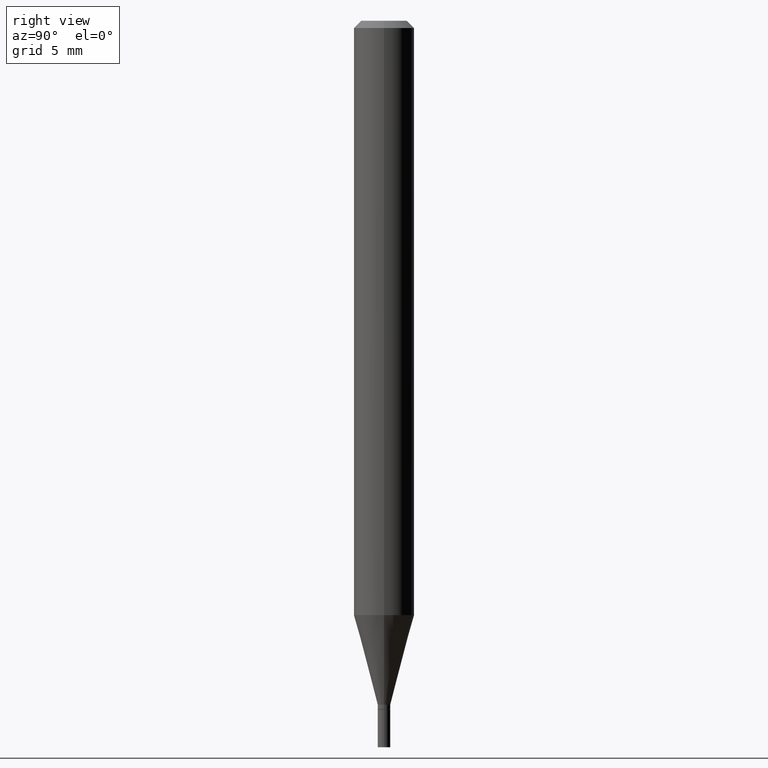
[diagram: clean part render]
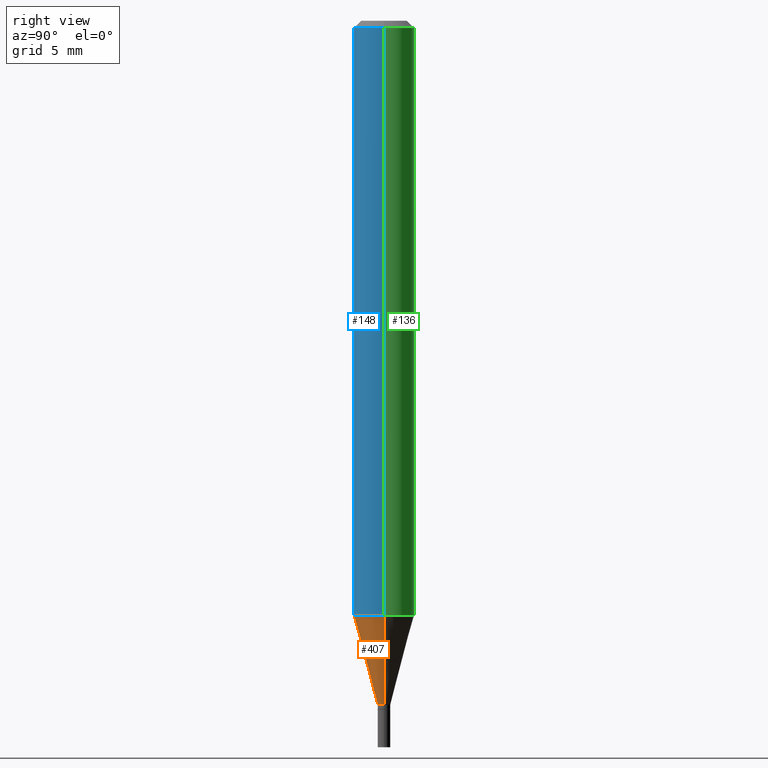
[diagram: same view with three faces highlighted in distinct colors, each labeled with its STEP entity id]
A machine part, right view with three faces highlighted in distinct colors.
Their STEP definitions:

[orange] entity #407 — the highlighted conical surface has half-angle 15 deg.
#1 = CARTESIAN_POINT ( 'NONE',  ( 0.06249999999999999306, -4.721402723164972337E-15, -1.227263485025340550 ) ) ;
#5 = AXIS2_PLACEMENT_3D ( 'NONE', #384, #348, #433 ) ;
#31 = DIRECTION ( 'NONE',  ( -2.445468806185136597E-29, 3.491481338843145583E-15, 1.000000000000000000 ) ) ;
#39 = CARTESIAN_POINT ( 'NONE',  ( 0.01299999999999992134, -5.020750165256443057E-15, -1.412000000000000144 ) ) ;
#53 = EDGE_CURVE ( 'NONE', #165, #60, #347, .T. ) ;
#60 = VERTEX_POINT ( 'NONE', #1 ) ;
#72 = VERTEX_POINT ( 'NONE', #39 ) ;
#82 = DIRECTION ( 'NONE',  ( 0.2588190451025207950, 1.565188264969625912E-15, 0.9659258262890682012 ) ) ;
#93 = VECTOR ( 'NONE', #82, 39.37007874015748854 ) ;
#94 = AXIS2_PLACEMENT_3D ( 'NONE', #178, #225, #460 ) ;
#96 = ORIENTED_EDGE ( 'NONE', *, *, #226, .F. ) ;
#99 = ORIENTED_EDGE ( 'NONE', *, *, #110, .T. ) ;
#110 = EDGE_CURVE ( 'NONE', #311, #72, #404, .T. ) ;
#111 = AXIS2_PLACEMENT_3D ( 'NONE', #408, #31, #171 ) ;
#114 = LINE ( 'NONE', #398, #93 ) ;
#137 = EDGE_LOOP ( 'NONE', ( #96, #99, #380, #305 ) ) ;
#165 = VERTEX_POINT ( 'NONE', #429 ) ;
#171 = DIRECTION ( 'NONE',  ( 1.000000000000000000, -6.982962677686299843E-15, 0.000000000000000000 ) ) ;
#178 = CARTESIAN_POINT ( 'NONE',  ( 3.001234569599529890E-29, -4.284967555809580668E-15, -1.227263485025340550 ) ) ;
#186 = CARTESIAN_POINT ( 'NONE',  ( -0.01299999999999992134, -4.837601094797709398E-15, -1.412000000000000144 ) ) ;
#195 = FACE_OUTER_BOUND ( 'NONE', #137, .T. ) ;
#222 = VECTOR ( 'NONE', #263, 39.37007874015748854 ) ;
#223 = CARTESIAN_POINT ( 'NONE',  ( -0.01299999999999992134, -4.339239720378613725E-15, -1.412000000000000144 ) ) ;
#225 = DIRECTION ( 'NONE',  ( -2.445468806185136597E-29, 3.491481338843145583E-15, 1.000000000000000000 ) ) ;
#226 = EDGE_CURVE ( 'NONE', #311, #165, #397, .T. ) ;
#263 = DIRECTION ( 'NONE',  ( -0.2588190451025207950, 5.211531920934546309E-15, 0.9659258262890682012 ) ) ;
#305 = ORIENTED_EDGE ( 'NONE', *, *, #53, .F. ) ;
#307 = EDGE_CURVE ( 'NONE', #72, #60, #114, .T. ) ;
#311 = VERTEX_POINT ( 'NONE', #223 ) ;
#347 = CIRCLE ( 'NONE', #94, 0.06250000000000000000 ) ;
#348 = DIRECTION ( 'NONE',  ( -2.445468806185136597E-29, 3.491481338843145583E-15, 1.000000000000000000 ) ) ;
#380 = ORIENTED_EDGE ( 'NONE', *, *, #307, .T. ) ;
#384 = CARTESIAN_POINT ( 'NONE',  ( 3.453001954333413314E-29, -4.929971650446521716E-15, -1.412000000000000144 ) ) ;
#392 = CONICAL_SURFACE ( 'NONE', #111, 0.01299999999999992134, 0.2617993877991495189 ) ;
#397 = LINE ( 'NONE', #186, #222 ) ;
#398 = CARTESIAN_POINT ( 'NONE',  ( 0.01299999999999992134, -5.020750165256443057E-15, -1.412000000000000144 ) ) ;
#404 = CIRCLE ( 'NONE', #5, 0.01299999999999992134 ) ;
#407 = ADVANCED_FACE ( 'NONE', ( #195 ), #392, .T. ) ;
#408 = CARTESIAN_POINT ( 'NONE',  ( 3.453001954333413314E-29, -4.929971650446521716E-15, -1.412000000000000144 ) ) ;
#429 = CARTESIAN_POINT ( 'NONE',  ( -0.06249999999999999306, -3.840878345959517263E-15, -1.227263485025340550 ) ) ;
#433 = DIRECTION ( 'NONE',  ( 1.000000000000000000, -6.982962677686299843E-15, 0.000000000000000000 ) ) ;
#460 = DIRECTION ( 'NONE',  ( 1.000000000000000000, -6.982962677686270655E-15, 0.000000000000000000 ) ) ;

[blue] entity #148 — the highlighted cylindrical surface (edge-blend (fillet) strip) has radius 1.5875 mm, axis along (-0, 0, 1).
#1 = CARTESIAN_POINT ( 'NONE',  ( 0.06249999999999999306, -4.721402723164972337E-15, -1.227263485025340550 ) ) ;
#2 = DIRECTION ( 'NONE',  ( -2.445468806185136877E-29, 3.491481338843145188E-15, 1.000000000000000000 ) ) ;
#17 = VECTOR ( 'NONE', #2, 39.37007874015748143 ) ;
#43 = AXIS2_PLACEMENT_3D ( 'NONE', #256, #227, #333 ) ;
#52 = CYLINDRICAL_SURFACE ( 'NONE', #354, 0.06250000000000000000 ) ;
#53 = EDGE_CURVE ( 'NONE', #165, #60, #347, .T. ) ;
#60 = VERTEX_POINT ( 'NONE', #1 ) ;
#68 = VERTEX_POINT ( 'NONE', #456 ) ;
#77 = FACE_OUTER_BOUND ( 'NONE', #237, .T. ) ;
#94 = AXIS2_PLACEMENT_3D ( 'NONE', #178, #225, #460 ) ;
#95 = ORIENTED_EDGE ( 'NONE', *, *, #53, .T. ) ;
#104 = VERTEX_POINT ( 'NONE', #141 ) ;
#133 = ORIENTED_EDGE ( 'NONE', *, *, #268, .F. ) ;
#141 = CARTESIAN_POINT ( 'NONE',  ( 0.06250000000000000000, -4.888073874380388472E-16, -0.01499999999999999944 ) ) ;
#146 = DIRECTION ( 'NONE',  ( 1.000000000000000000, -6.982962677686266711E-15, 4.876176775795935793E-29 ) ) ;
#148 = ADVANCED_FACE ( 'NONE', ( #77 ), #52, .T. ) ;
#165 = VERTEX_POINT ( 'NONE', #429 ) ;
#178 = CARTESIAN_POINT ( 'NONE',  ( 3.001234569599529890E-29, -4.284967555809580668E-15, -1.227263485025340550 ) ) ;
#185 = CARTESIAN_POINT ( 'NONE',  ( 0.000000000000000000, 0.000000000000000000, 0.000000000000000000 ) ) ;
#200 = ORIENTED_EDGE ( 'NONE', *, *, #466, .T. ) ;
#212 = VECTOR ( 'NONE', #244, 39.37007874015748143 ) ;
#216 = DIRECTION ( 'NONE',  ( -2.445468806185136597E-29, 3.491481338843145583E-15, 1.000000000000000000 ) ) ;
#225 = DIRECTION ( 'NONE',  ( -2.445468806185136597E-29, 3.491481338843145583E-15, 1.000000000000000000 ) ) ;
#227 = DIRECTION ( 'NONE',  ( -2.445468806185136597E-29, 3.491481338843145583E-15, 1.000000000000000000 ) ) ;
#237 = EDGE_LOOP ( 'NONE', ( #243, #95, #200, #133 ) ) ;
#241 = EDGE_CURVE ( 'NONE', #165, #68, #295, .T. ) ;
#242 = CIRCLE ( 'NONE', #43, 0.06250000000000000000 ) ;
#243 = ORIENTED_EDGE ( 'NONE', *, *, #241, .F. ) ;
#244 = DIRECTION ( 'NONE',  ( -2.445468806185136877E-29, 3.491481338843145188E-15, 1.000000000000000000 ) ) ;
#256 = CARTESIAN_POINT ( 'NONE',  ( 3.668203209277705088E-31, -5.237222008264718399E-17, -0.01499999999999999944 ) ) ;
#268 = EDGE_CURVE ( 'NONE', #68, #104, #242, .T. ) ;
#295 = LINE ( 'NONE', #297, #17 ) ;
#297 = CARTESIAN_POINT ( 'NONE',  ( -0.06250000000000000000, 4.440892098500626162E-16, -3.074334431409316114E-30 ) ) ;
#321 = LINE ( 'NONE', #349, #212 ) ;
#333 = DIRECTION ( 'NONE',  ( 1.000000000000000000, -6.982962677686266711E-15, 0.000000000000000000 ) ) ;
#347 = CIRCLE ( 'NONE', #94, 0.06250000000000000000 ) ;
#349 = CARTESIAN_POINT ( 'NONE',  ( 0.06250000000000000000, -4.364351673553916694E-16, 3.047610484872459871E-30 ) ) ;
#354 = AXIS2_PLACEMENT_3D ( 'NONE', #185, #216, #146 ) ;
#429 = CARTESIAN_POINT ( 'NONE',  ( -0.06249999999999999306, -3.840878345959517263E-15, -1.227263485025340550 ) ) ;
#456 = CARTESIAN_POINT ( 'NONE',  ( -0.06250000000000000000, -1.724580678096051257E-15, -0.01499999999999999944 ) ) ;
#460 = DIRECTION ( 'NONE',  ( 1.000000000000000000, -6.982962677686270655E-15, 0.000000000000000000 ) ) ;
#466 = EDGE_CURVE ( 'NONE', #60, #104, #321, .T. ) ;

[green] entity #136 — the highlighted cylindrical surface (edge-blend (fillet) strip) has radius 1.5875 mm, axis along (-0, 0, 1).
#1 = CARTESIAN_POINT ( 'NONE',  ( 0.06249999999999999306, -4.721402723164972337E-15, -1.227263485025340550 ) ) ;
#2 = DIRECTION ( 'NONE',  ( -2.445468806185136877E-29, 3.491481338843145188E-15, 1.000000000000000000 ) ) ;
#12 = CYLINDRICAL_SURFACE ( 'NONE', #443, 0.06250000000000000000 ) ;
#15 = CIRCLE ( 'NONE', #42, 0.06250000000000000000 ) ;
#17 = VECTOR ( 'NONE', #2, 39.37007874015748143 ) ;
#38 = AXIS2_PLACEMENT_3D ( 'NONE', #232, #54, #368 ) ;
#42 = AXIS2_PLACEMENT_3D ( 'NONE', #169, #308, #450 ) ;
#54 = DIRECTION ( 'NONE',  ( -2.445468806185136597E-29, 3.491481338843145583E-15, 1.000000000000000000 ) ) ;
#60 = VERTEX_POINT ( 'NONE', #1 ) ;
#68 = VERTEX_POINT ( 'NONE', #456 ) ;
#104 = VERTEX_POINT ( 'NONE', #141 ) ;
#108 = FACE_OUTER_BOUND ( 'NONE', #453, .T. ) ;
#109 = DIRECTION ( 'NONE',  ( 1.000000000000000000, -6.982962677686266711E-15, 4.876176775795935793E-29 ) ) ;
#136 = ADVANCED_FACE ( 'NONE', ( #108 ), #12, .T. ) ;
#141 = CARTESIAN_POINT ( 'NONE',  ( 0.06250000000000000000, -4.888073874380388472E-16, -0.01499999999999999944 ) ) ;
#165 = VERTEX_POINT ( 'NONE', #429 ) ;
#169 = CARTESIAN_POINT ( 'NONE',  ( 3.668203209277705088E-31, -5.237222008264718399E-17, -0.01499999999999999944 ) ) ;
#172 = ORIENTED_EDGE ( 'NONE', *, *, #379, .T. ) ;
#212 = VECTOR ( 'NONE', #244, 39.37007874015748143 ) ;
#219 = CIRCLE ( 'NONE', #38, 0.06250000000000000000 ) ;
#232 = CARTESIAN_POINT ( 'NONE',  ( 3.001234569599529890E-29, -4.284967555809580668E-15, -1.227263485025340550 ) ) ;
#238 = ORIENTED_EDGE ( 'NONE', *, *, #241, .T. ) ;
#241 = EDGE_CURVE ( 'NONE', #165, #68, #295, .T. ) ;
#244 = DIRECTION ( 'NONE',  ( -2.445468806185136877E-29, 3.491481338843145188E-15, 1.000000000000000000 ) ) ;
#295 = LINE ( 'NONE', #297, #17 ) ;
#297 = CARTESIAN_POINT ( 'NONE',  ( -0.06250000000000000000, 4.440892098500626162E-16, -3.074334431409316114E-30 ) ) ;
#304 = ORIENTED_EDGE ( 'NONE', *, *, #466, .F. ) ;
#308 = DIRECTION ( 'NONE',  ( -2.445468806185136597E-29, 3.491481338843145583E-15, 1.000000000000000000 ) ) ;
#321 = LINE ( 'NONE', #349, #212 ) ;
#330 = DIRECTION ( 'NONE',  ( -2.445468806185136597E-29, 3.491481338843145583E-15, 1.000000000000000000 ) ) ;
#349 = CARTESIAN_POINT ( 'NONE',  ( 0.06250000000000000000, -4.364351673553916694E-16, 3.047610484872459871E-30 ) ) ;
#365 = CARTESIAN_POINT ( 'NONE',  ( 0.000000000000000000, 0.000000000000000000, 0.000000000000000000 ) ) ;
#368 = DIRECTION ( 'NONE',  ( 1.000000000000000000, -6.982962677686270655E-15, 0.000000000000000000 ) ) ;
#379 = EDGE_CURVE ( 'NONE', #60, #165, #219, .T. ) ;
#409 = ORIENTED_EDGE ( 'NONE', *, *, #412, .F. ) ;
#412 = EDGE_CURVE ( 'NONE', #104, #68, #15, .T. ) ;
#429 = CARTESIAN_POINT ( 'NONE',  ( -0.06249999999999999306, -3.840878345959517263E-15, -1.227263485025340550 ) ) ;
#443 = AXIS2_PLACEMENT_3D ( 'NONE', #365, #330, #109 ) ;
#450 = DIRECTION ( 'NONE',  ( 1.000000000000000000, -6.982962677686266711E-15, 0.000000000000000000 ) ) ;
#453 = EDGE_LOOP ( 'NONE', ( #172, #238, #409, #304 ) ) ;
#456 = CARTESIAN_POINT ( 'NONE',  ( -0.06250000000000000000, -1.724580678096051257E-15, -0.01499999999999999944 ) ) ;
#466 = EDGE_CURVE ( 'NONE', #60, #104, #321, .T. ) ;